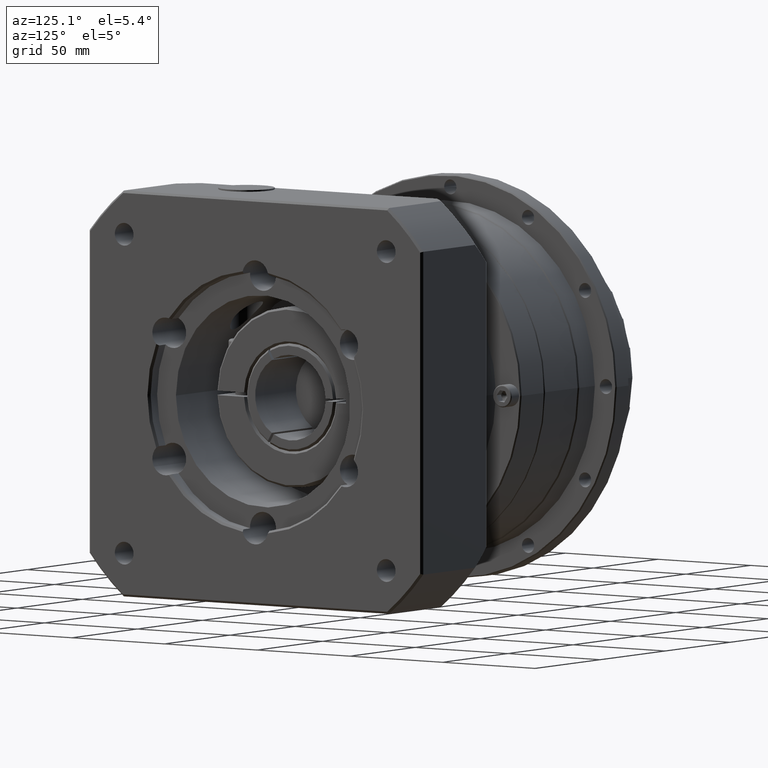
[diagram: clean part render]
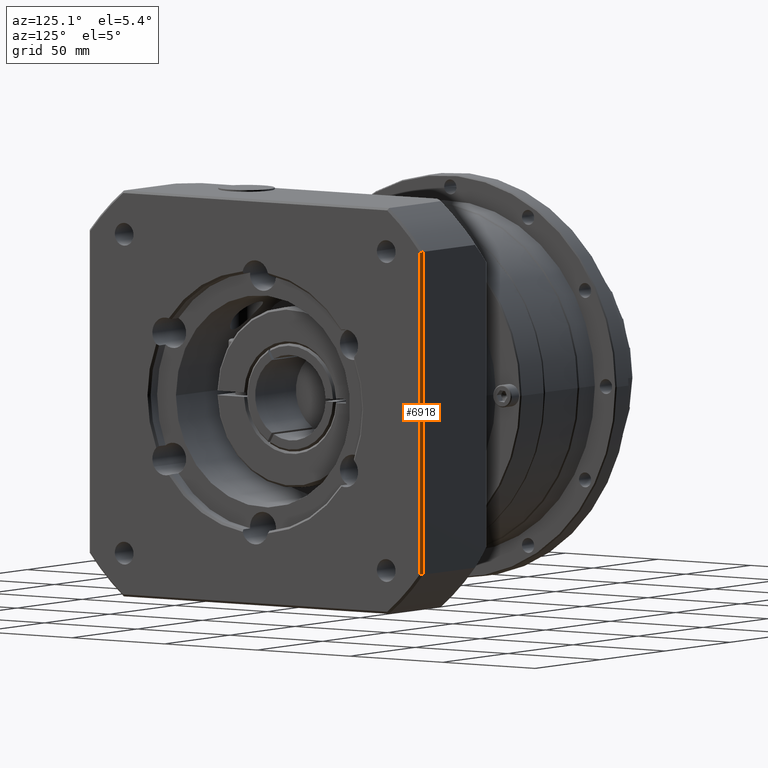
[diagram: same view with one face highlighted and labeled with its STEP entity id]
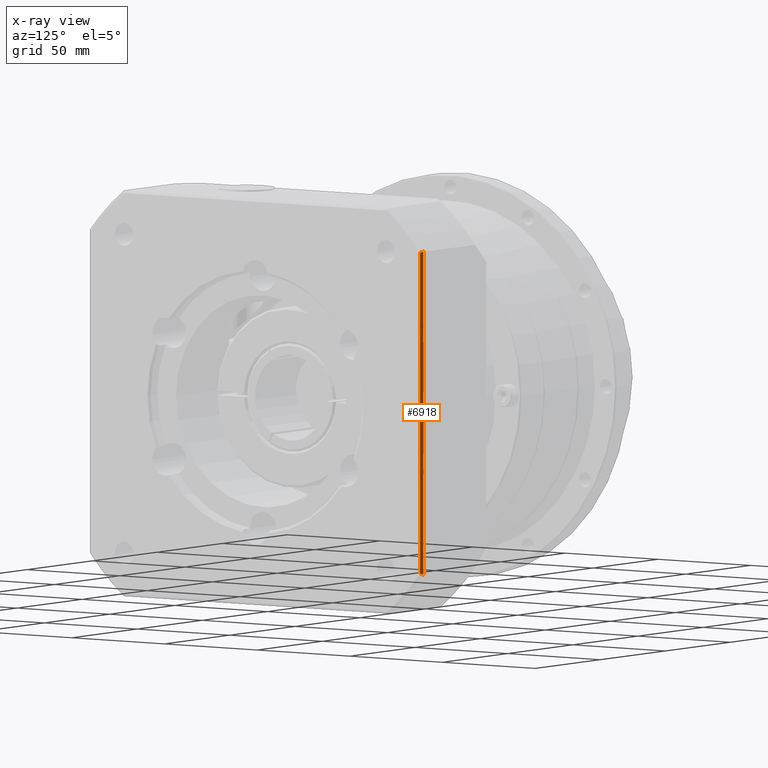
[diagram: x-ray of the same camera — body ghosted, the highlighted face saturated]
A machine part, auxiliary view. The second image highlights one B-rep face of the part: STEP entity #6918.
The next image is the same camera in x-ray: the body ghosted, the highlighted face saturated — about 0% of this face is hidden behind the body in this view.
In plain terms, the highlighted planar face has unit normal (0.7071, 0.7071, 0).
Its self-contained STEP definition (entity closure, byte-faithful):
#261=LINE('',#11171,#544);
#272=LINE('',#11311,#555);
#544=VECTOR('',#8798,142.47806848775);
#555=VECTOR('',#8893,143.178210632764);
#756=B_SPLINE_CURVE_WITH_KNOTS('',3,(#11296,#11297,#11298,#11299),
 .UNSPECIFIED.,.F.,.F.,(4,4),(0.,0.145688783364463),.UNSPECIFIED.);
#758=B_SPLINE_CURVE_WITH_KNOTS('',3,(#11307,#11308,#11309,#11310),
 .UNSPECIFIED.,.F.,.F.,(4,4),(0.,0.145688783375605),.UNSPECIFIED.);
#1864=FACE_OUTER_BOUND('',#2438,.T.);
#2438=EDGE_LOOP('',(#5439,#5440,#5441,#5442));
#3616=VERTEX_POINT('',#11157);
#3622=VERTEX_POINT('',#11169);
#3660=VERTEX_POINT('',#11295);
#3661=VERTEX_POINT('',#11306);
#4320=EDGE_CURVE('',#3616,#3622,#261,.T.);
#4369=EDGE_CURVE('',#3616,#3660,#756,.T.);
#4372=EDGE_CURVE('',#3622,#3661,#758,.T.);
#4373=EDGE_CURVE('',#3661,#3660,#272,.T.);
#5439=ORIENTED_EDGE('',*,*,#4320,.T.);
#5440=ORIENTED_EDGE('',*,*,#4372,.T.);
#5441=ORIENTED_EDGE('',*,*,#4373,.T.);
#5442=ORIENTED_EDGE('',*,*,#4369,.F.);
#6624=PLANE('',#7591);
#6918=ADVANCED_FACE('',(#1864),#6624,.T.);
#7591=AXIS2_PLACEMENT_3D('',#11305,#8891,#8892);
#8798=DIRECTION('',(2.76291701760916E-15,2.22386105360086E-16,-1.));
#8891=DIRECTION('center_axis',(0.707106781186539,0.707106781186556,2.11092808214891E-15));
#8892=DIRECTION('ref_axis',(-2.8421709430404E-15,0.,1.));
#8893=DIRECTION('',(-2.76291701760916E-15,-2.22386105360086E-16,1.));
#11157=CARTESIAN_POINT('',(-28.9857500619039,197.296351812799,33.557426766245));
#11169=CARTESIAN_POINT('',(-28.9857500619035,197.296351812799,-108.920641721505));
#11171=CARTESIAN_POINT('',(-28.9857500619038,197.296351812799,7.31839252236995));
#11295=CARTESIAN_POINT('',(-29.9857500619039,198.296351812799,33.9074978387517));
#11296=CARTESIAN_POINT('Ctrl Pts',(-28.9857500619039,197.296351812799,33.557426766245));
#11297=CARTESIAN_POINT('Ctrl Pts',(-29.3190338936668,197.629635644562,33.6743864623232));
#11298=CARTESIAN_POINT('Ctrl Pts',(-29.6523718906558,197.962973641551,33.7910771313777));
#11299=CARTESIAN_POINT('Ctrl Pts',(-29.9857500619039,198.296351812799,33.9074978387517));
#11305=CARTESIAN_POINT('Origin',(-29.4857500619038,197.796351812799,7.31839252236995));
#11306=CARTESIAN_POINT('',(-29.9857500619035,198.296351812799,-109.270712794012));
#11307=CARTESIAN_POINT('Ctrl Pts',(-28.9857500619035,197.296351812799,-108.920641721505));
#11308=CARTESIAN_POINT('Ctrl Pts',(-29.3190338936918,197.629635644587,-109.037601417592));
#11309=CARTESIAN_POINT('Ctrl Pts',(-29.6523718907069,197.962973641602,-109.154292086656));
#11310=CARTESIAN_POINT('Ctrl Pts',(-29.9857500619035,198.296351812799,-109.270712794012));
#11311=CARTESIAN_POINT('',(-29.9857500619038,198.296351812799,7.31839252236995));